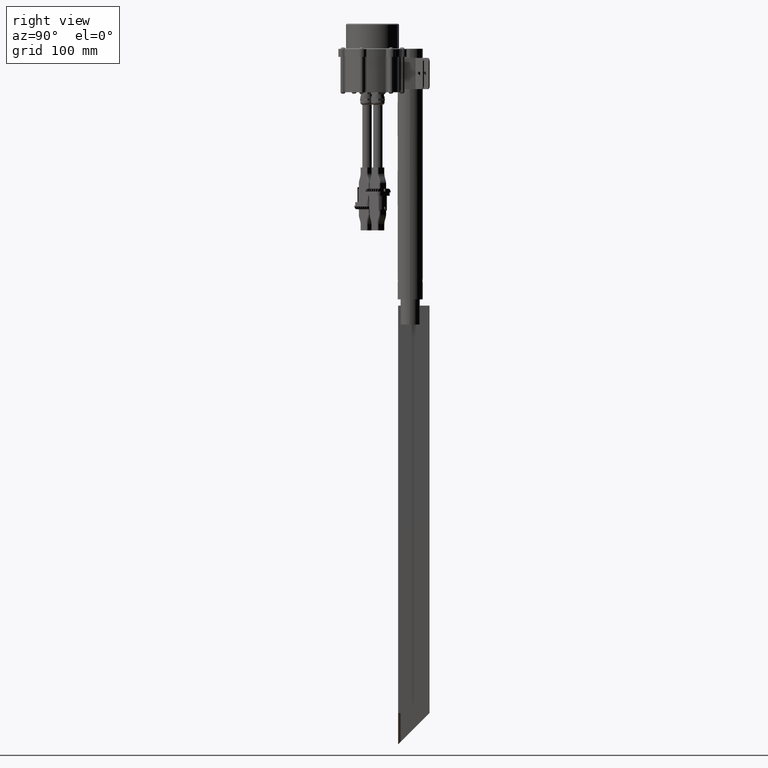
[diagram: clean part render]
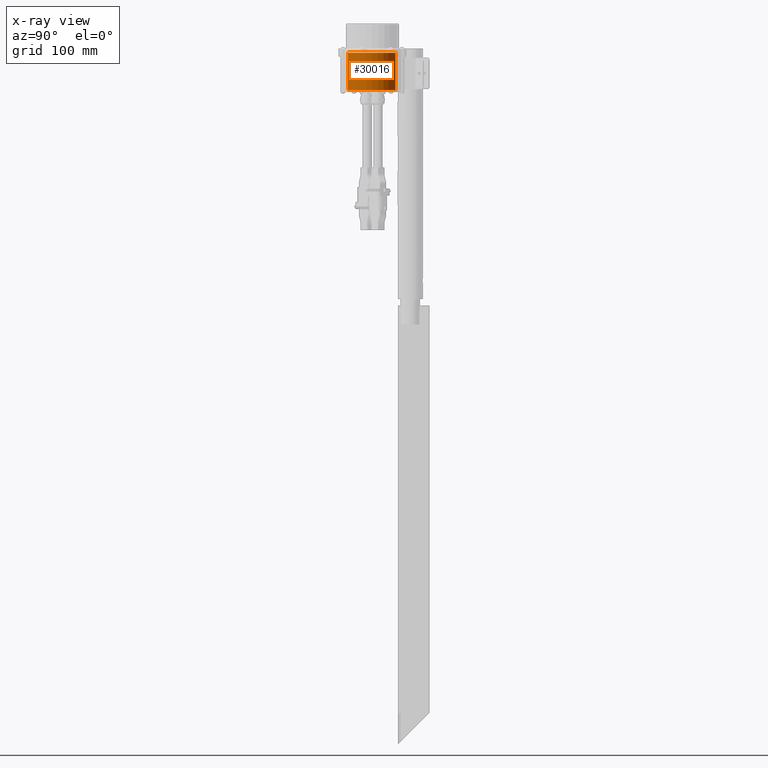
[diagram: x-ray — body ghosted, one internal face saturated and labeled with its STEP entity id]
A machine part, right view, then the same camera in x-ray: the body is ghosted and one INTERNAL B-rep face — a face not visible from any outside direction — is saturated and labeled: STEP entity #30016.
In plain terms, the highlighted cylindrical surface (edge-blend (fillet) strip) has radius 39.5 mm, axis along (0, -0, 1).
Its self-contained STEP definition (entity closure, byte-faithful):
#2377 = ORIENTED_EDGE ( 'NONE', *, *, #26185, .F. ) ;
#2798 = ORIENTED_EDGE ( 'NONE', *, *, #32872, .T. ) ;
#2809 = VERTEX_POINT ( 'NONE', #5720 ) ;
#3283 = AXIS2_PLACEMENT_3D ( 'NONE', #8549, #32067, #5578 ) ;
#5578 = DIRECTION ( 'NONE',  ( -1.000000000000000000, 0.0000000000000000000, 0.0000000000000000000 ) ) ;
#5720 = CARTESIAN_POINT ( 'NONE',  ( 39.50000000000508700, -1.193765889270270400E-012, 60.00000000000000000 ) ) ;
#6022 = CARTESIAN_POINT ( 'NONE',  ( -39.49999999999491300, -1.198603244126902400E-012, 60.00000000000000000 ) ) ;
#7359 = CIRCLE ( 'NONE', #13128, 39.50000000000000000 ) ;
#7741 = CARTESIAN_POINT ( 'NONE',  ( 5.085898904018360800E-012, -1.198603244126902400E-012, 60.00000000000000000 ) ) ;
#8549 = CARTESIAN_POINT ( 'NONE',  ( 5.085898904018360800E-012, -1.198603244126902400E-012, 60.00000000000000000 ) ) ;
#9860 = AXIS2_PLACEMENT_3D ( 'NONE', #7741, #28354, #10691 ) ;
#10691 = DIRECTION ( 'NONE',  ( 1.000000000000000000, 0.0000000000000000000, 0.0000000000000000000 ) ) ;
#11561 = EDGE_CURVE ( 'NONE', #34896, #13805, #7359, .T. ) ;
#12045 = EDGE_LOOP ( 'NONE', ( #20204, #2798, #35406, #2377 ) ) ;
#13128 = AXIS2_PLACEMENT_3D ( 'NONE', #34390, #16773, #37328 ) ;
#13805 = VERTEX_POINT ( 'NONE', #20097 ) ;
#15984 = CIRCLE ( 'NONE', #9860, 39.50000000000000000 ) ;
#16608 = DIRECTION ( 'NONE',  ( -0.0000000000000000000, -0.0000000000000000000, -1.000000000000000000 ) ) ;
#16773 = DIRECTION ( 'NONE',  ( -0.0000000000000000000, 0.0000000000000000000, 1.000000000000000000 ) ) ;
#18800 = VECTOR ( 'NONE', #23730, 1000.000000000000000 ) ;
#20097 = CARTESIAN_POINT ( 'NONE',  ( 39.50000000000508700, -1.193765889270270400E-012, 0.0000000000000000000 ) ) ;
#20204 = ORIENTED_EDGE ( 'NONE', *, *, #20320, .T. ) ;
#20320 = EDGE_CURVE ( 'NONE', #34716, #2809, #15984, .T. ) ;
#23393 = LINE ( 'NONE', #34216, #30266 ) ;
#23730 = DIRECTION ( 'NONE',  ( -0.0000000000000000000, -0.0000000000000000000, -1.000000000000000000 ) ) ;
#24401 = CARTESIAN_POINT ( 'NONE',  ( -39.49999999999491300, -1.198603244126902400E-012, 0.0000000000000000000 ) ) ;
#26185 = EDGE_CURVE ( 'NONE', #34716, #34896, #26645, .T. ) ;
#26645 = LINE ( 'NONE', #35430, #18800 ) ;
#28354 = DIRECTION ( 'NONE',  ( -0.0000000000000000000, 0.0000000000000000000, 1.000000000000000000 ) ) ;
#29070 = CYLINDRICAL_SURFACE ( 'NONE', #3283, 39.50000000000000000 ) ;
#29951 = FACE_OUTER_BOUND ( 'NONE', #12045, .T. ) ;
#30016 = ADVANCED_FACE ( 'NONE', ( #29951 ), #29070, .F. ) ;
#30266 = VECTOR ( 'NONE', #16608, 1000.000000000000000 ) ;
#32067 = DIRECTION ( 'NONE',  ( -0.0000000000000000000, -0.0000000000000000000, -1.000000000000000000 ) ) ;
#32872 = EDGE_CURVE ( 'NONE', #2809, #13805, #23393, .T. ) ;
#34216 = CARTESIAN_POINT ( 'NONE',  ( 39.50000000000508700, -1.193765889270270400E-012, 60.00000000000000000 ) ) ;
#34390 = CARTESIAN_POINT ( 'NONE',  ( 5.085898904018360800E-012, -1.198603244126902400E-012, 0.0000000000000000000 ) ) ;
#34716 = VERTEX_POINT ( 'NONE', #6022 ) ;
#34896 = VERTEX_POINT ( 'NONE', #24401 ) ;
#35406 = ORIENTED_EDGE ( 'NONE', *, *, #11561, .F. ) ;
#35430 = CARTESIAN_POINT ( 'NONE',  ( -39.49999999999491300, -1.198603244126902400E-012, 60.00000000000000000 ) ) ;
#37328 = DIRECTION ( 'NONE',  ( 1.000000000000000000, 0.0000000000000000000, 0.0000000000000000000 ) ) ;